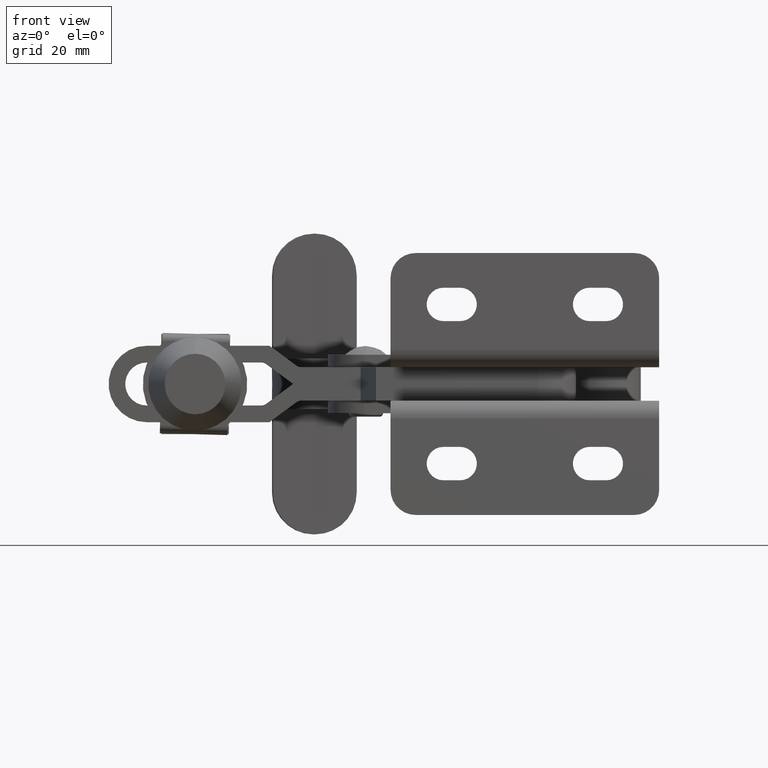
[diagram: clean part render]
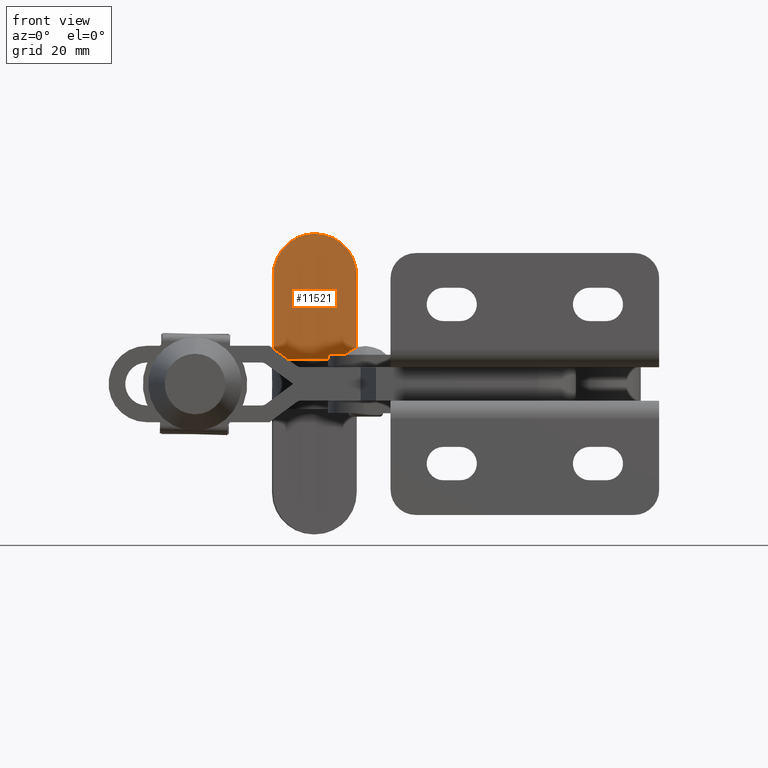
[diagram: same view with one face highlighted and labeled with its STEP entity id]
A machine part, front view. The second image highlights one B-rep face of the part: STEP entity #11521.
In plain terms, the highlighted planar face has unit normal (0.037, -0.9993, -0).
Its self-contained STEP definition (entity closure, byte-faithful):
#361 = LINE ( 'NONE', #7954, #7758 ) ;
#516 = DIRECTION ( 'NONE',  ( 1.387273005398913900E-017, 1.786622027403079000E-018, -1.000000000000000000 ) ) ;
#996 = ORIENTED_EDGE ( 'NONE', *, *, #7044, .F. ) ;
#1599 = DIRECTION ( 'NONE',  ( 0.03703586145808814700, -0.9993139371419059700, -1.271607784063628200E-018 ) ) ;
#1752 = EDGE_CURVE ( 'NONE', #2717, #10125, #361, .T. ) ;
#2182 = CARTESIAN_POINT ( 'NONE',  ( -69.02729727991767600, 29.02512565335923300, 22.00000000000014200 ) ) ;
#2374 = DIRECTION ( 'NONE',  ( -0.9993139371419060800, -0.03703586145808815400, -1.392938157504360600E-017 ) ) ;
#2405 = CARTESIAN_POINT ( 'NONE',  ( -79.02043665133673800, 28.65476703877835300, 22.00000000000014600 ) ) ;
#2424 = AXIS2_PLACEMENT_3D ( 'NONE', #2182, #8663, #3113 ) ;
#2717 = VERTEX_POINT ( 'NONE', #4118 ) ;
#2814 = CARTESIAN_POINT ( 'NONE',  ( -79.02043665133673800, 28.65476703877835300, -29.99999999999988600 ) ) ;
#2816 = CARTESIAN_POINT ( 'NONE',  ( -69.02580858087628700, 29.02518082646290400, 31.99999977807326700 ) ) ;
#3113 = DIRECTION ( 'NONE',  ( 0.0000000000000000000, 0.0000000000000000000, -1.000000000000000000 ) ) ;
#3804 = EDGE_CURVE ( 'NONE', #10247, #11031, #8734, .T. ) ;
#3882 = LINE ( 'NONE', #8871, #6040 ) ;
#4118 = CARTESIAN_POINT ( 'NONE',  ( -59.03118051041586500, 29.39559461414744800, 2.000000000000000000 ) ) ;
#4340 = ORIENTED_EDGE ( 'NONE', *, *, #3804, .T. ) ;
#4360 = CARTESIAN_POINT ( 'NONE',  ( -79.02043665133673800, 28.65476703877835300, 2.000000000000000000 ) ) ;
#4426 = CARTESIAN_POINT ( 'NONE',  ( -59.03118051041586500, 29.39559461414744800, 22.00000000000014200 ) ) ;
#5165 = CARTESIAN_POINT ( 'NONE',  ( -77.02180877705292500, 28.72883876169452900, 30.00000000000014900 ) ) ;
#5323 = ORIENTED_EDGE ( 'NONE', *, *, #8402, .F. ) ;
#6040 = VECTOR ( 'NONE', #2374, 999.9999999999998900 ) ;
#6078 = DIRECTION ( 'NONE',  ( 0.03703586145808815400, -0.9993139371419060800, -1.271607784063627600E-018 ) ) ;
#7015 = LINE ( 'NONE', #2814, #9210 ) ;
#7044 = EDGE_CURVE ( 'NONE', #9506, #11031, #7015, .T. ) ;
#7155 = CARTESIAN_POINT ( 'NONE',  ( -69.02431988183494100, 29.02523599956656500, 22.00000000000014200 ) ) ;
#7242 = CIRCLE ( 'NONE', #7593, 10.00000000000000000 ) ;
#7276 = ORIENTED_EDGE ( 'NONE', *, *, #1752, .T. ) ;
#7593 = AXIS2_PLACEMENT_3D ( 'NONE', #7155, #1599, #8078 ) ;
#7758 = VECTOR ( 'NONE', #11711, 1000.000000000000000 ) ;
#7954 = CARTESIAN_POINT ( 'NONE',  ( -59.03118051041586500, 29.39559461414744800, 30.00000000000014900 ) ) ;
#8052 = AXIS2_PLACEMENT_3D ( 'NONE', #5165, #6078, #516 ) ;
#8078 = DIRECTION ( 'NONE',  ( 0.0000000000000000000, 0.0000000000000000000, -1.000000000000000000 ) ) ;
#8402 = EDGE_CURVE ( 'NONE', #2717, #9506, #3882, .T. ) ;
#8663 = DIRECTION ( 'NONE',  ( 0.03703586145808814700, -0.9993139371419059700, -1.271607784063628200E-018 ) ) ;
#8734 = CIRCLE ( 'NONE', #2424, 10.00000000000000700 ) ;
#8805 = PLANE ( 'NONE',  #8052 ) ;
#8871 = CARTESIAN_POINT ( 'NONE',  ( -77.02180877705292500, 28.72883876169452900, 2.000000000000000000 ) ) ;
#9210 = VECTOR ( 'NONE', #9327, 1000.000000000000000 ) ;
#9277 = EDGE_LOOP ( 'NONE', ( #996, #5323, #7276, #9622, #4340 ) ) ;
#9327 = DIRECTION ( 'NONE',  ( -1.387273005398913900E-017, -1.786622027403079000E-018, 1.000000000000000000 ) ) ;
#9506 = VERTEX_POINT ( 'NONE', #4360 ) ;
#9622 = ORIENTED_EDGE ( 'NONE', *, *, #11995, .T. ) ;
#10125 = VERTEX_POINT ( 'NONE', #4426 ) ;
#10247 = VERTEX_POINT ( 'NONE', #2816 ) ;
#10627 = FACE_OUTER_BOUND ( 'NONE', #9277, .T. ) ;
#11031 = VERTEX_POINT ( 'NONE', #2405 ) ;
#11521 = ADVANCED_FACE ( 'NONE', ( #10627 ), #8805, .T. ) ;
#11711 = DIRECTION ( 'NONE',  ( -1.387273005398913900E-017, -1.786622027403079000E-018, 1.000000000000000000 ) ) ;
#11995 = EDGE_CURVE ( 'NONE', #10125, #10247, #7242, .T. ) ;